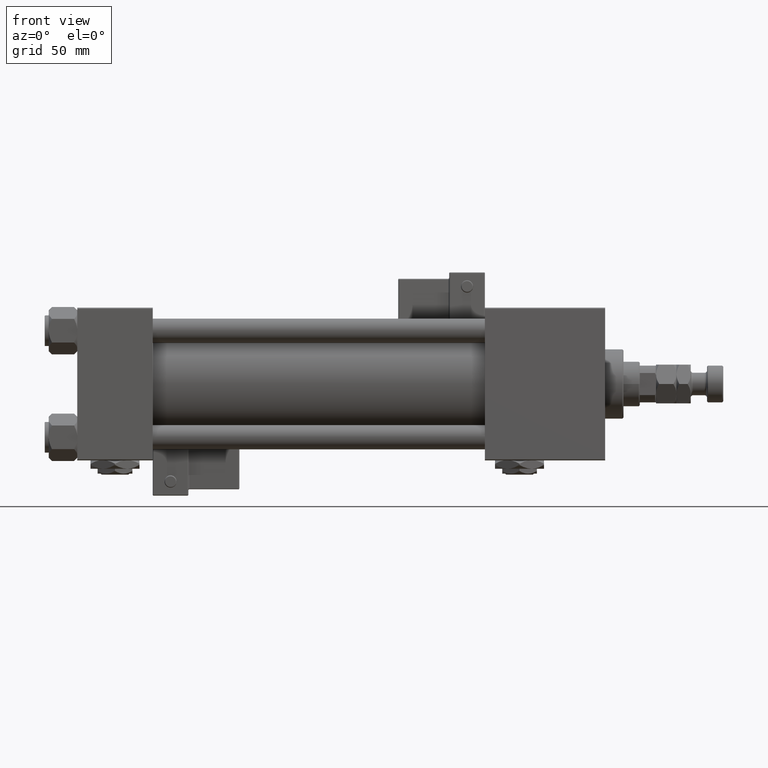
[diagram: clean part render]
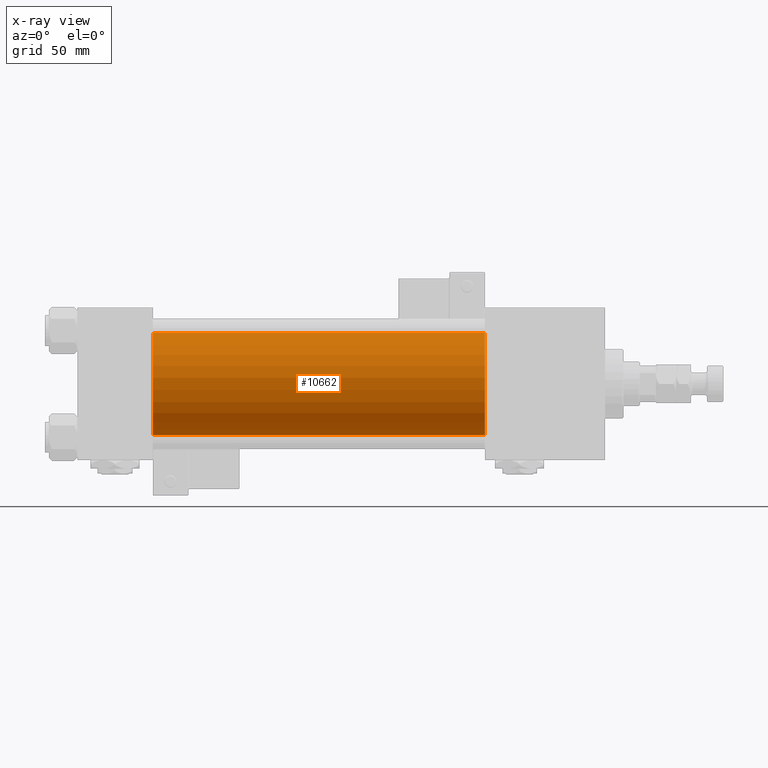
[diagram: x-ray — body ghosted, one internal face saturated and labeled with its STEP entity id]
A machine part, front view, then the same camera in x-ray: the body is ghosted and one INTERNAL B-rep face — a face not visible from any outside direction — is saturated and labeled: STEP entity #10662.
In plain terms, the highlighted cylindrical surface (partial cylindrical patch) has radius 25 mm, axis along (-1, -0, -0).
Its self-contained STEP definition (entity closure, byte-faithful):
#531 = LINE ( 'NONE', #48596, #3605 ) ;
#1465 = CIRCLE ( 'NONE', #40542, 25.00000000000000000 ) ;
#2379 = VERTEX_POINT ( 'NONE', #50460 ) ;
#2592 = AXIS2_PLACEMENT_3D ( 'NONE', #7446, #37573, #25045 ) ;
#2634 = VECTOR ( 'NONE', #27315, 1000.000000000000000 ) ;
#3363 = DIRECTION ( 'NONE',  ( 1.000000000000000000, 0.000000000000000000, 0.000000000000000000 ) ) ;
#3605 = VECTOR ( 'NONE', #13599, 1000.000000000000000 ) ;
#5288 = CARTESIAN_POINT ( 'NONE',  ( 37.00000000000000000, 4.595317839031724996E-16, -25.00000000000000000 ) ) ;
#7446 = CARTESIAN_POINT ( 'NONE',  ( 200.0000000000000000, -2.602085213965210642E-15, 0.000000000000000000 ) ) ;
#9728 = AXIS2_PLACEMENT_3D ( 'NONE', #20677, #3363, #38042 ) ;
#10662 = ADVANCED_FACE ( 'NONE', ( #11997 ), #29334, .F. ) ;
#10802 = VERTEX_POINT ( 'NONE', #28343 ) ;
#11997 = FACE_OUTER_BOUND ( 'NONE', #34554, .T. ) ;
#12092 = EDGE_CURVE ( 'NONE', #44113, #2379, #19346, .T. ) ;
#13599 = DIRECTION ( 'NONE',  ( -1.000000000000000000, -0.000000000000000000, -0.000000000000000000 ) ) ;
#17929 = CARTESIAN_POINT ( 'NONE',  ( 200.0000000000000000, -2.602085213965210642E-15, 25.00000000000000000 ) ) ;
#19346 = LINE ( 'NONE', #40406, #2634 ) ;
#20316 = ORIENTED_EDGE ( 'NONE', *, *, #46783, .T. ) ;
#20677 = CARTESIAN_POINT ( 'NONE',  ( 37.00000000000000000, -2.602085213965210642E-15, 0.000000000000000000 ) ) ;
#24234 = CIRCLE ( 'NONE', #9728, 25.00000000000000000 ) ;
#24463 = VERTEX_POINT ( 'NONE', #5288 ) ;
#25045 = DIRECTION ( 'NONE',  ( 0.000000000000000000, 0.000000000000000000, 1.000000000000000000 ) ) ;
#27315 = DIRECTION ( 'NONE',  ( -1.000000000000000000, -0.000000000000000000, -0.000000000000000000 ) ) ;
#27627 = EDGE_CURVE ( 'NONE', #10802, #24463, #531, .T. ) ;
#28343 = CARTESIAN_POINT ( 'NONE',  ( 200.0000000000000000, 4.595317839031724996E-16, -25.00000000000000000 ) ) ;
#29334 = CYLINDRICAL_SURFACE ( 'NONE', #2592, 25.00000000000000000 ) ;
#31763 = DIRECTION ( 'NONE',  ( 1.000000000000000000, 0.000000000000000000, 0.000000000000000000 ) ) ;
#34554 = EDGE_LOOP ( 'NONE', ( #20316, #44696, #47753, #46269 ) ) ;
#37159 = CARTESIAN_POINT ( 'NONE',  ( 200.0000000000000000, -2.602085213965210642E-15, 0.000000000000000000 ) ) ;
#37573 = DIRECTION ( 'NONE',  ( -1.000000000000000000, -0.000000000000000000, -0.000000000000000000 ) ) ;
#38042 = DIRECTION ( 'NONE',  ( 0.000000000000000000, 0.000000000000000000, -1.000000000000000000 ) ) ;
#40406 = CARTESIAN_POINT ( 'NONE',  ( 200.0000000000000000, -2.602085213965210642E-15, 25.00000000000000000 ) ) ;
#40542 = AXIS2_PLACEMENT_3D ( 'NONE', #37159, #31763, #44877 ) ;
#44113 = VERTEX_POINT ( 'NONE', #17929 ) ;
#44696 = ORIENTED_EDGE ( 'NONE', *, *, #27627, .T. ) ;
#44877 = DIRECTION ( 'NONE',  ( 0.000000000000000000, 0.000000000000000000, -1.000000000000000000 ) ) ;
#46269 = ORIENTED_EDGE ( 'NONE', *, *, #12092, .F. ) ;
#46783 = EDGE_CURVE ( 'NONE', #44113, #10802, #1465, .T. ) ;
#47753 = ORIENTED_EDGE ( 'NONE', *, *, #52117, .F. ) ;
#48596 = CARTESIAN_POINT ( 'NONE',  ( 200.0000000000000000, 4.595317839031724996E-16, -25.00000000000000000 ) ) ;
#50460 = CARTESIAN_POINT ( 'NONE',  ( 37.00000000000000000, -2.602085213965210642E-15, 25.00000000000000000 ) ) ;
#52117 = EDGE_CURVE ( 'NONE', #2379, #24463, #24234, .T. ) ;